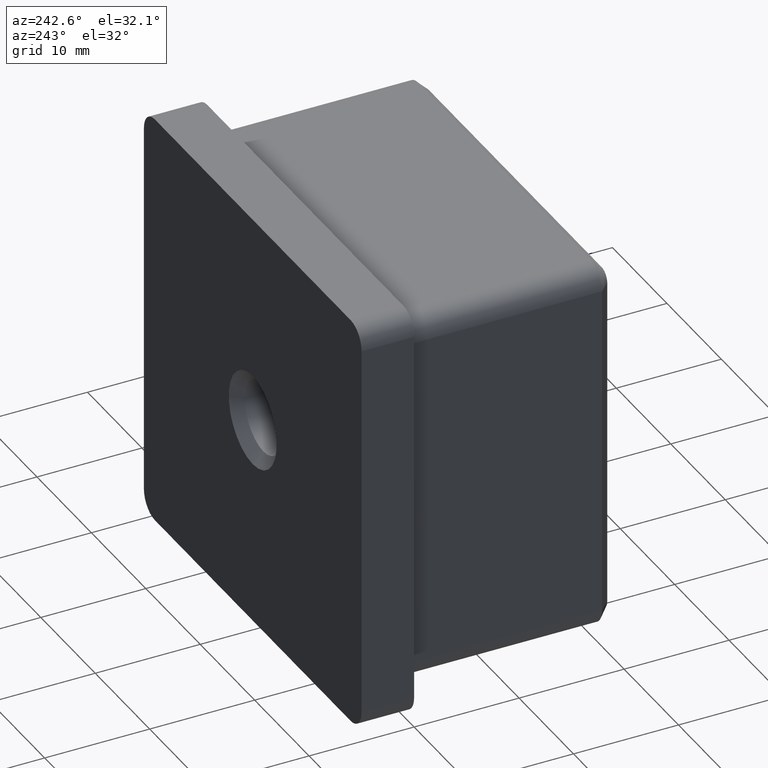
[diagram: clean part render]
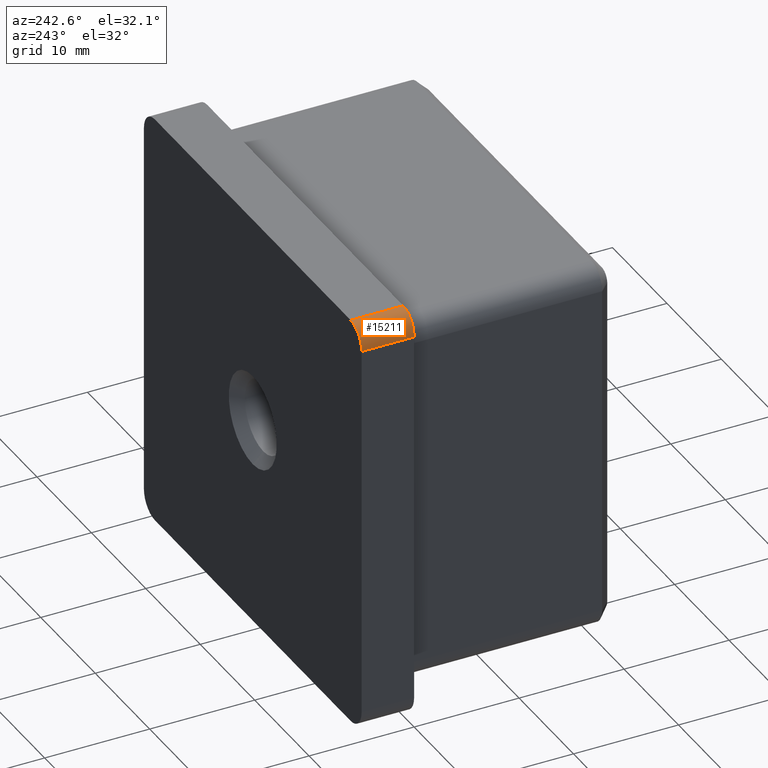
[diagram: same view with one face highlighted and labeled with its STEP entity id]
A machine part, auxiliary view. The second image highlights one B-rep face of the part: STEP entity #15211.
In plain terms, the highlighted cylindrical surface (edge-blend (fillet) strip) has radius 2 mm, axis along (0, -1, 0).
Its self-contained STEP definition (entity closure, byte-faithful):
#886 = CYLINDRICAL_SURFACE ( 'NONE', #2653, 2.000000000000001800 ) ;
#1061 = EDGE_LOOP ( 'NONE', ( #13591, #12386, #6282, #15576 ) ) ;
#2065 = CARTESIAN_POINT ( 'NONE',  ( -20.00000000000000000, 5.000000000000000000, 17.99999999999999600 ) ) ;
#2653 = AXIS2_PLACEMENT_3D ( 'NONE', #10656, #15807, #13238 ) ;
#3165 = VERTEX_POINT ( 'NONE', #12992 ) ;
#3383 = DIRECTION ( 'NONE',  ( 0.0000000000000000000, 0.0000000000000000000, 1.000000000000000000 ) ) ;
#4334 = EDGE_CURVE ( 'NONE', #11902, #3165, #15864, .T. ) ;
#4647 = AXIS2_PLACEMENT_3D ( 'NONE', #4668, #7171, #7398 ) ;
#4668 = CARTESIAN_POINT ( 'NONE',  ( -18.00000000000000000, 5.000000000000000000, 17.99999999999999600 ) ) ;
#6282 = ORIENTED_EDGE ( 'NONE', *, *, #4334, .F. ) ;
#7151 = CARTESIAN_POINT ( 'NONE',  ( -18.00000000000000000, 5.000000000000000000, 19.99999999999999600 ) ) ;
#7171 = DIRECTION ( 'NONE',  ( 0.0000000000000000000, 1.000000000000000000, 0.0000000000000000000 ) ) ;
#7398 = DIRECTION ( 'NONE',  ( 0.0000000000000000000, 0.0000000000000000000, 1.000000000000000000 ) ) ;
#7671 = CARTESIAN_POINT ( 'NONE',  ( -20.00000000000000000, 5.000000000000000000, 17.99999999999999600 ) ) ;
#8054 = VERTEX_POINT ( 'NONE', #2065 ) ;
#8539 = AXIS2_PLACEMENT_3D ( 'NONE', #14972, #12539, #3383 ) ;
#8725 = EDGE_CURVE ( 'NONE', #8054, #10547, #10436, .T. ) ;
#8870 = VECTOR ( 'NONE', #11175, 1000.000000000000000 ) ;
#9153 = DIRECTION ( 'NONE',  ( -0.0000000000000000000, 1.000000000000000000, -0.0000000000000000000 ) ) ;
#10168 = CARTESIAN_POINT ( 'NONE',  ( -18.00000000000000000, 5.000000000000000000, 19.99999999999999600 ) ) ;
#10436 = CIRCLE ( 'NONE', #4647, 2.000000000000001800 ) ;
#10547 = VERTEX_POINT ( 'NONE', #10168 ) ;
#10656 = CARTESIAN_POINT ( 'NONE',  ( -18.00000000000000000, 5.000000000000000000, 17.99999999999999600 ) ) ;
#11175 = DIRECTION ( 'NONE',  ( 0.0000000000000000000, -1.000000000000000000, 0.0000000000000000000 ) ) ;
#11902 = VERTEX_POINT ( 'NONE', #14353 ) ;
#12386 = ORIENTED_EDGE ( 'NONE', *, *, #13197, .F. ) ;
#12539 = DIRECTION ( 'NONE',  ( -0.0000000000000000000, -1.000000000000000000, -0.0000000000000000000 ) ) ;
#12704 = EDGE_CURVE ( 'NONE', #10547, #11902, #15120, .T. ) ;
#12992 = CARTESIAN_POINT ( 'NONE',  ( -20.00000000000000000, 0.0000000000000000000, 17.99999999999999600 ) ) ;
#13023 = VECTOR ( 'NONE', #9153, 1000.000000000000000 ) ;
#13197 = EDGE_CURVE ( 'NONE', #3165, #8054, #16480, .T. ) ;
#13238 = DIRECTION ( 'NONE',  ( 0.0000000000000000000, 0.0000000000000000000, -1.000000000000000000 ) ) ;
#13591 = ORIENTED_EDGE ( 'NONE', *, *, #8725, .F. ) ;
#14353 = CARTESIAN_POINT ( 'NONE',  ( -18.00000000000000000, 0.0000000000000000000, 19.99999999999999600 ) ) ;
#14972 = CARTESIAN_POINT ( 'NONE',  ( -18.00000000000000000, 0.0000000000000000000, 17.99999999999999600 ) ) ;
#15120 = LINE ( 'NONE', #7151, #8870 ) ;
#15211 = ADVANCED_FACE ( 'NONE', ( #16172 ), #886, .T. ) ;
#15576 = ORIENTED_EDGE ( 'NONE', *, *, #12704, .F. ) ;
#15807 = DIRECTION ( 'NONE',  ( 0.0000000000000000000, -1.000000000000000000, 0.0000000000000000000 ) ) ;
#15864 = CIRCLE ( 'NONE', #8539, 2.000000000000001800 ) ;
#16172 = FACE_OUTER_BOUND ( 'NONE', #1061, .T. ) ;
#16480 = LINE ( 'NONE', #7671, #13023 ) ;